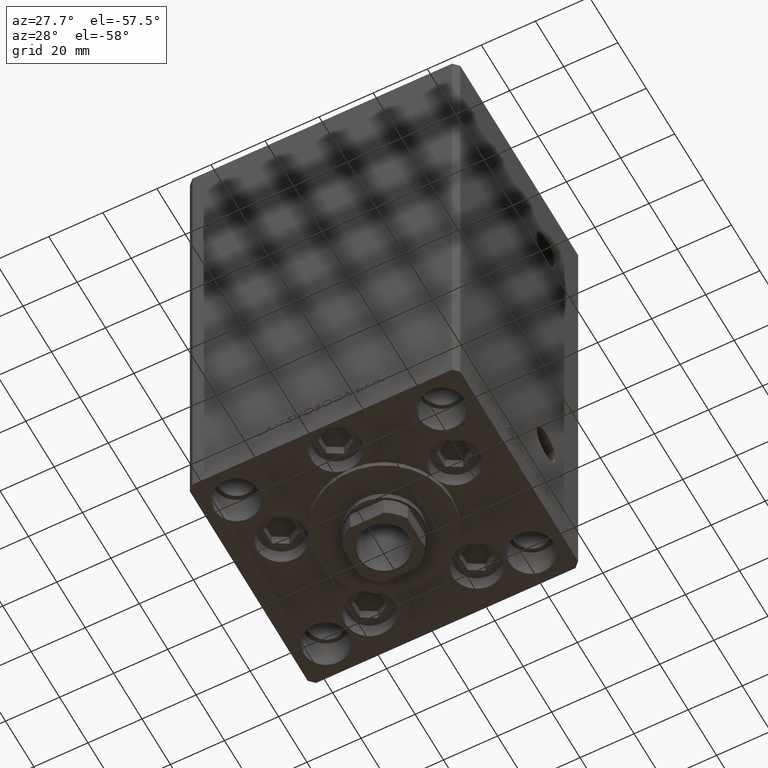
[diagram: clean part render]
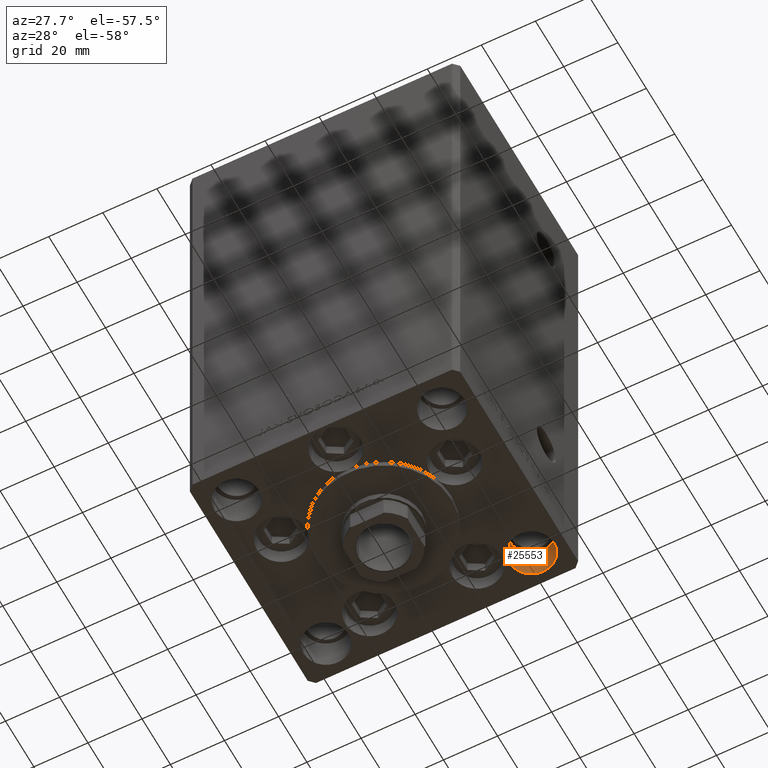
[diagram: same view with one face highlighted and labeled with its STEP entity id]
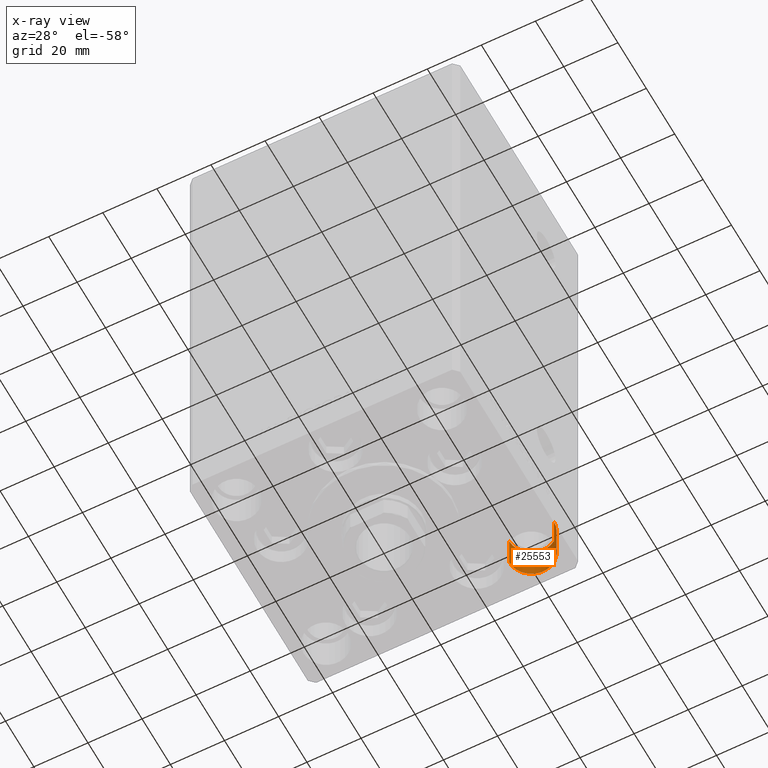
[diagram: x-ray of the same camera — body ghosted, the highlighted face saturated]
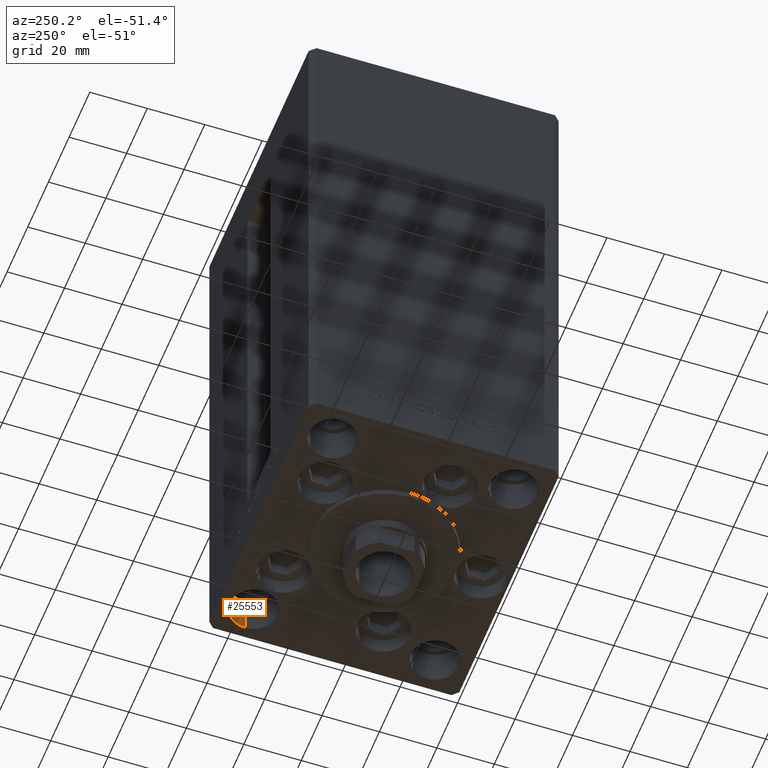
[diagram: same view with one face highlighted and labeled with its STEP entity id]
A machine part, auxiliary view. The second image highlights one B-rep face of the part: STEP entity #25553.
The next image is the same camera in x-ray: the body ghosted, the highlighted face saturated — about 0% of this face is hidden behind the body in this view.
A second angle (auxiliary view) of the same face is appended — the face is thin or edge-on in the first view.
In plain terms, the highlighted cylindrical surface (edge-blend (fillet) strip) has radius 8.25 mm, axis along (0, 0, -1).
Its self-contained STEP definition (entity closure, byte-faithful):
#138 = ORIENTED_EDGE ( 'NONE', *, *, #20082, .T. ) ;
#1561 = LINE ( 'NONE', #35916, #44829 ) ;
#3894 = CYLINDRICAL_SURFACE ( 'NONE', #48876, 8.250000000000000000 ) ;
#4150 = DIRECTION ( 'NONE',  ( -0.000000000000000000, -0.000000000000000000, 1.000000000000000000 ) ) ;
#4325 = EDGE_CURVE ( 'NONE', #35297, #15277, #16031, .T. ) ;
#5066 = DIRECTION ( 'NONE',  ( 0.000000000000000000, 0.000000000000000000, 1.000000000000000000 ) ) ;
#7022 = AXIS2_PLACEMENT_3D ( 'NONE', #35903, #5066, #24135 ) ;
#8451 = LINE ( 'NONE', #20253, #30673 ) ;
#8602 = VERTEX_POINT ( 'NONE', #15593 ) ;
#8840 = DIRECTION ( 'NONE',  ( -0.000000000000000000, -0.000000000000000000, 1.000000000000000000 ) ) ;
#11033 = CIRCLE ( 'NONE', #7022, 8.250000000000000000 ) ;
#11505 = VERTEX_POINT ( 'NONE', #30362 ) ;
#13779 = DIRECTION ( 'NONE',  ( 1.000000000000000000, 0.000000000000000000, 0.000000000000000000 ) ) ;
#15277 = VERTEX_POINT ( 'NONE', #26406 ) ;
#15593 = CARTESIAN_POINT ( 'NONE',  ( -46.25000000000000000, 31.50000000000000000, 0.000000000000000000 ) ) ;
#16031 = CIRCLE ( 'NONE', #40064, 8.250000000000000000 ) ;
#16162 = EDGE_CURVE ( 'NONE', #35297, #11505, #8451, .T. ) ;
#16235 = DIRECTION ( 'NONE',  ( -0.000000000000000000, -0.000000000000000000, 1.000000000000000000 ) ) ;
#20082 = EDGE_CURVE ( 'NONE', #11505, #8602, #11033, .T. ) ;
#20253 = CARTESIAN_POINT ( 'NONE',  ( -29.75000000000000000, 31.50000000000000000, -13.00000000000000000 ) ) ;
#20614 = EDGE_LOOP ( 'NONE', ( #23718, #38420, #44480, #138 ) ) ;
#22963 = CARTESIAN_POINT ( 'NONE',  ( -38.00000000000000000, 31.50000000000000000, -13.00000000000000000 ) ) ;
#23718 = ORIENTED_EDGE ( 'NONE', *, *, #24485, .F. ) ;
#24135 = DIRECTION ( 'NONE',  ( 1.000000000000000000, 0.000000000000000000, 0.000000000000000000 ) ) ;
#24485 = EDGE_CURVE ( 'NONE', #15277, #8602, #1561, .T. ) ;
#25553 = ADVANCED_FACE ( 'NONE', ( #38265 ), #3894, .F. ) ;
#25574 = DIRECTION ( 'NONE',  ( 0.000000000000000000, 0.000000000000000000, 1.000000000000000000 ) ) ;
#26406 = CARTESIAN_POINT ( 'NONE',  ( -46.25000000000000000, 31.50000000000000000, -13.00000000000000000 ) ) ;
#29343 = CARTESIAN_POINT ( 'NONE',  ( -38.00000000000000000, 31.50000000000000000, -13.00000000000000000 ) ) ;
#30362 = CARTESIAN_POINT ( 'NONE',  ( -29.75000000000000000, 31.50000000000000000, 0.000000000000000000 ) ) ;
#30673 = VECTOR ( 'NONE', #16235, 1000.000000000000000 ) ;
#30738 = DIRECTION ( 'NONE',  ( 1.000000000000000000, 0.000000000000000000, 0.000000000000000000 ) ) ;
#35297 = VERTEX_POINT ( 'NONE', #42876 ) ;
#35903 = CARTESIAN_POINT ( 'NONE',  ( -38.00000000000000000, 31.50000000000000000, 0.000000000000000000 ) ) ;
#35916 = CARTESIAN_POINT ( 'NONE',  ( -46.25000000000000000, 31.50000000000000000, -13.00000000000000000 ) ) ;
#38265 = FACE_OUTER_BOUND ( 'NONE', #20614, .T. ) ;
#38420 = ORIENTED_EDGE ( 'NONE', *, *, #4325, .F. ) ;
#40064 = AXIS2_PLACEMENT_3D ( 'NONE', #29343, #25574, #13779 ) ;
#42876 = CARTESIAN_POINT ( 'NONE',  ( -29.75000000000000000, 31.50000000000000000, -13.00000000000000000 ) ) ;
#44480 = ORIENTED_EDGE ( 'NONE', *, *, #16162, .T. ) ;
#44829 = VECTOR ( 'NONE', #8840, 1000.000000000000000 ) ;
#48876 = AXIS2_PLACEMENT_3D ( 'NONE', #22963, #4150, #30738 ) ;